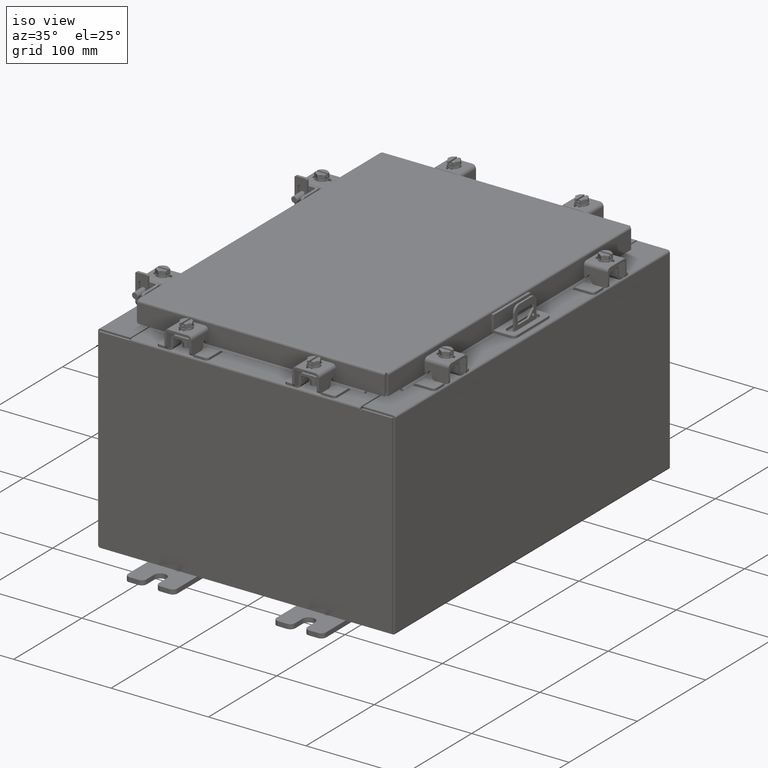
[diagram: clean part render]
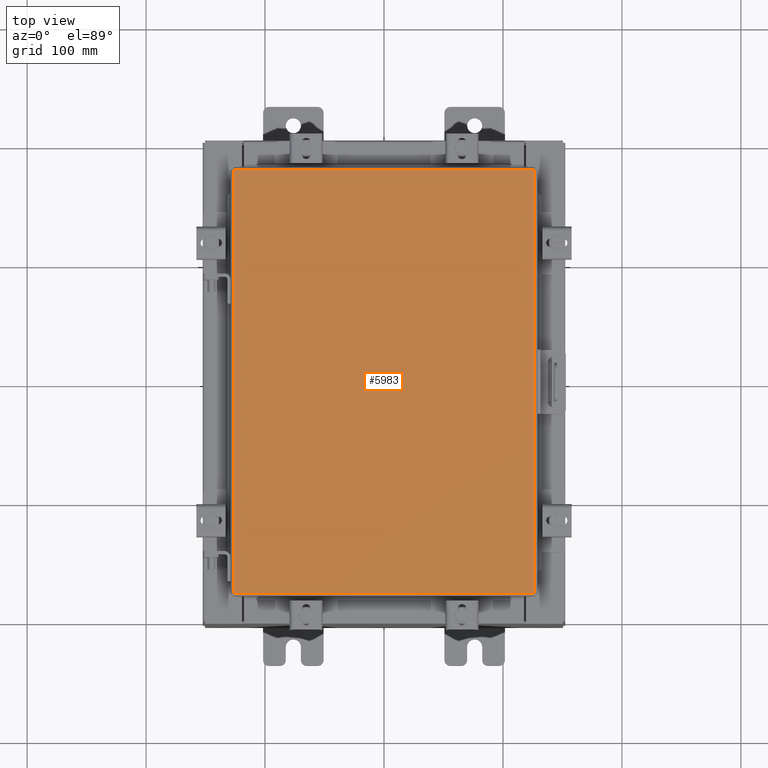
[diagram: tour spotlight — one face highlighted and labeled with its STEP entity id]
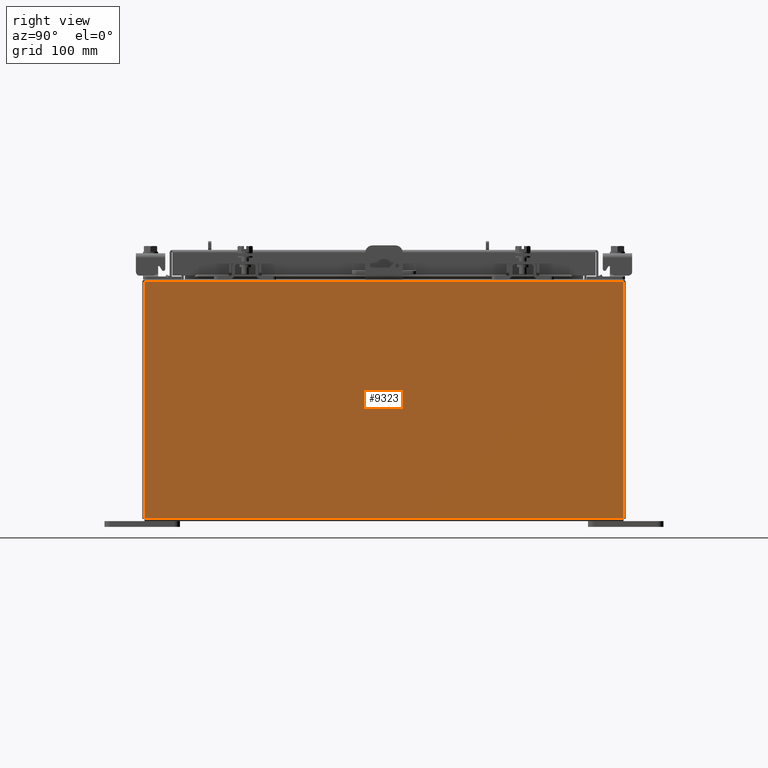
[diagram: tour spotlight — one face highlighted and labeled with its STEP entity id]
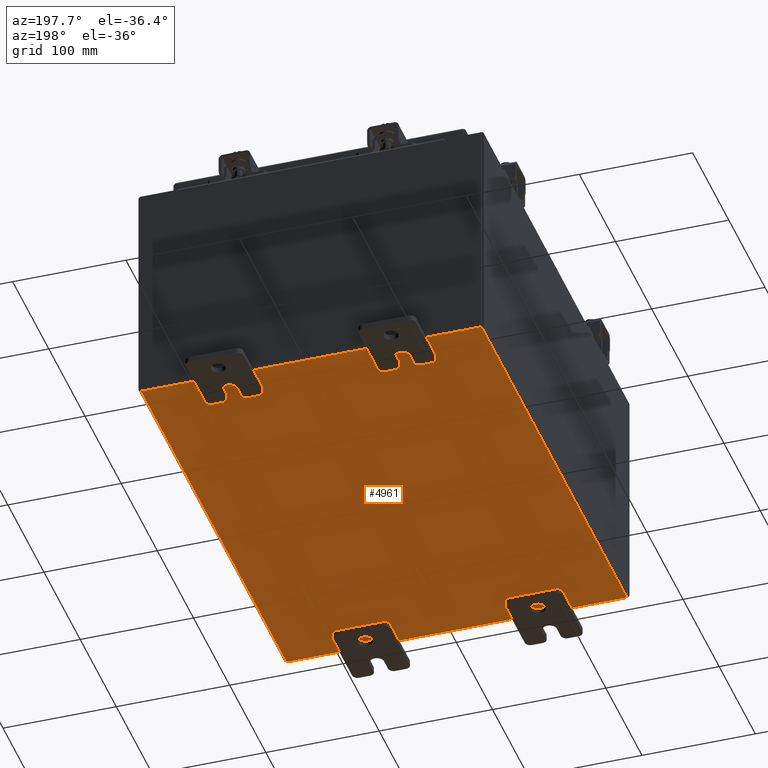
[diagram: tour spotlight — one face highlighted and labeled with its STEP entity id]
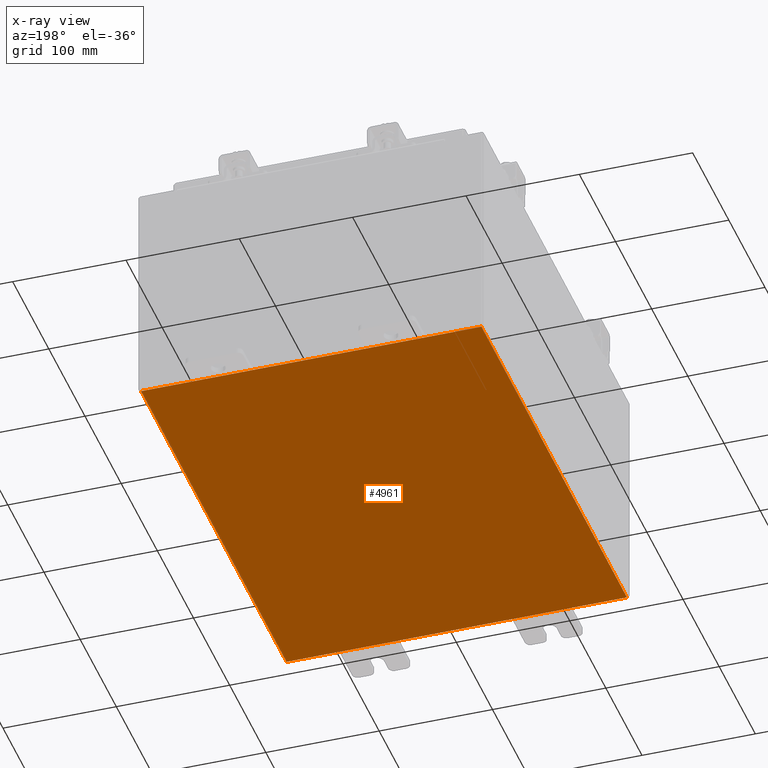
[diagram: x-ray of the same camera — body ghosted, this tour face saturated]
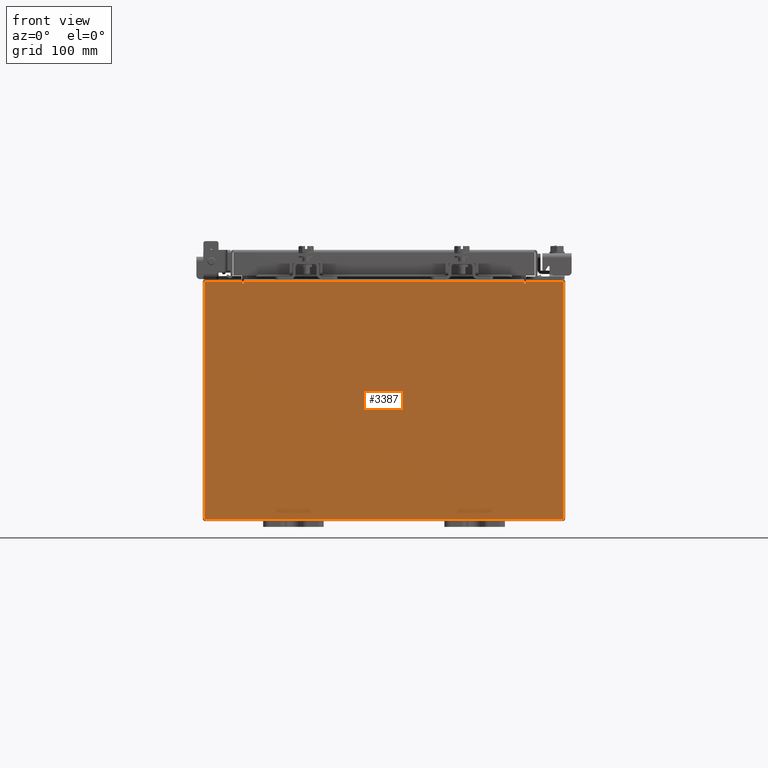
[diagram: tour spotlight — one face highlighted and labeled with its STEP entity id]
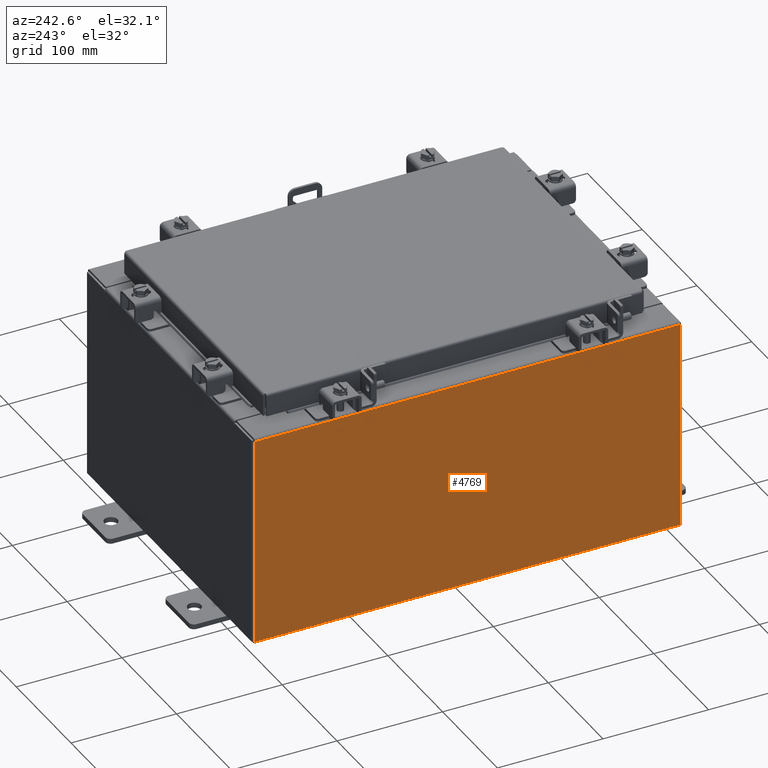
[diagram: tour spotlight — one face highlighted and labeled with its STEP entity id]
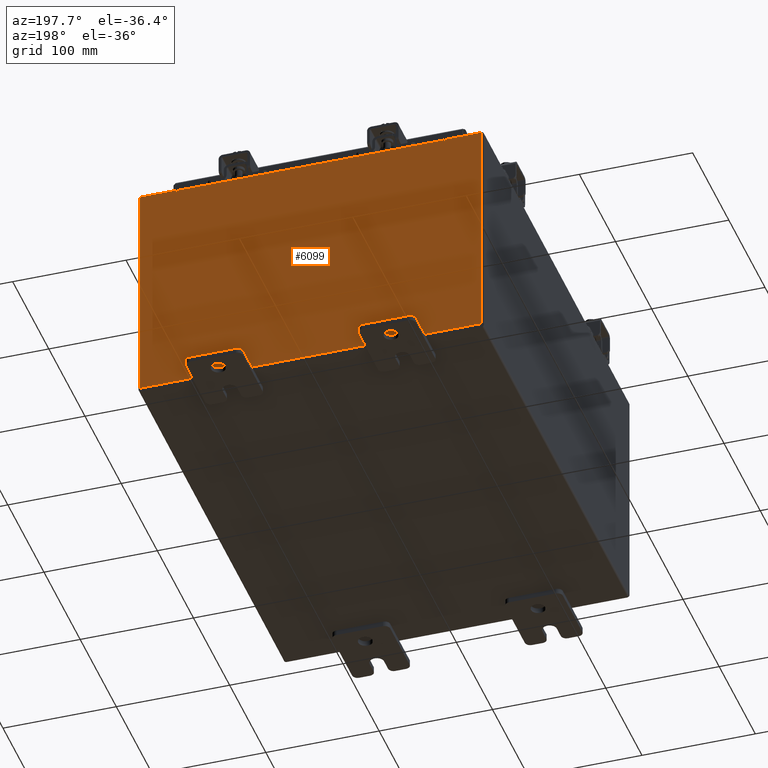
[diagram: tour spotlight — one face highlighted and labeled with its STEP entity id]
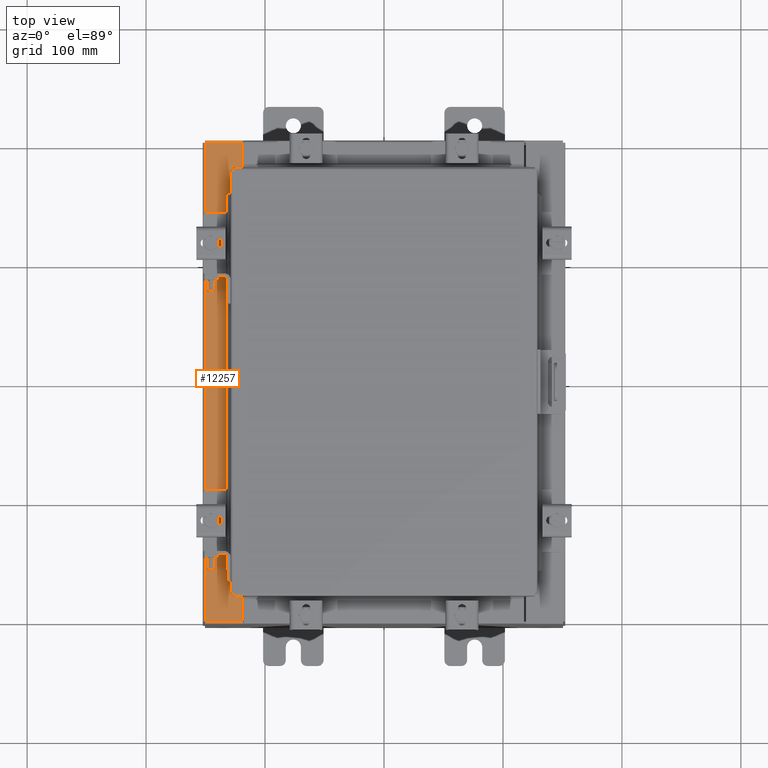
[diagram: tour spotlight — one face highlighted and labeled with its STEP entity id]
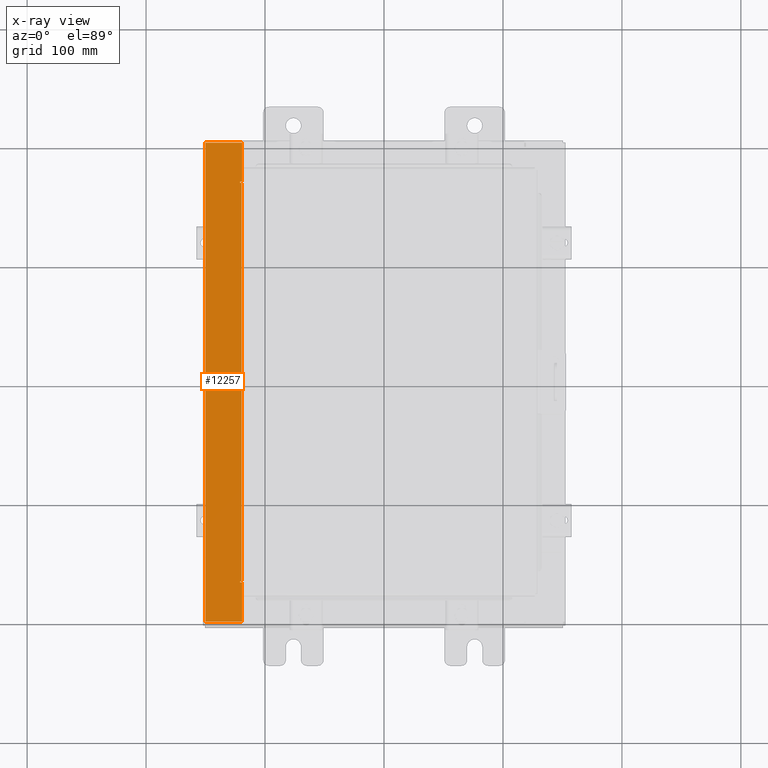
[diagram: x-ray of the same camera — body ghosted, this tour face saturated]
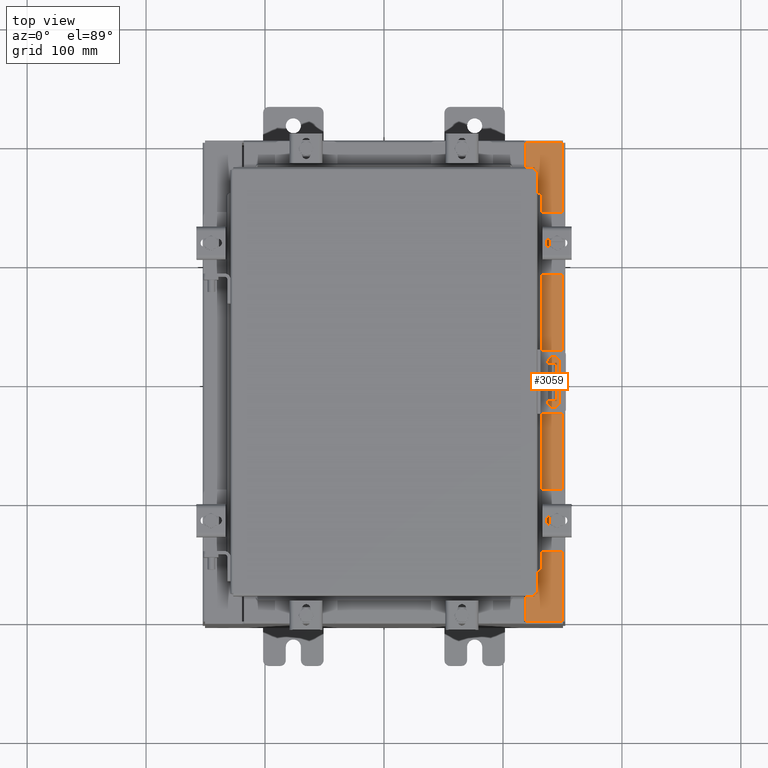
[diagram: tour spotlight — one face highlighted and labeled with its STEP entity id]
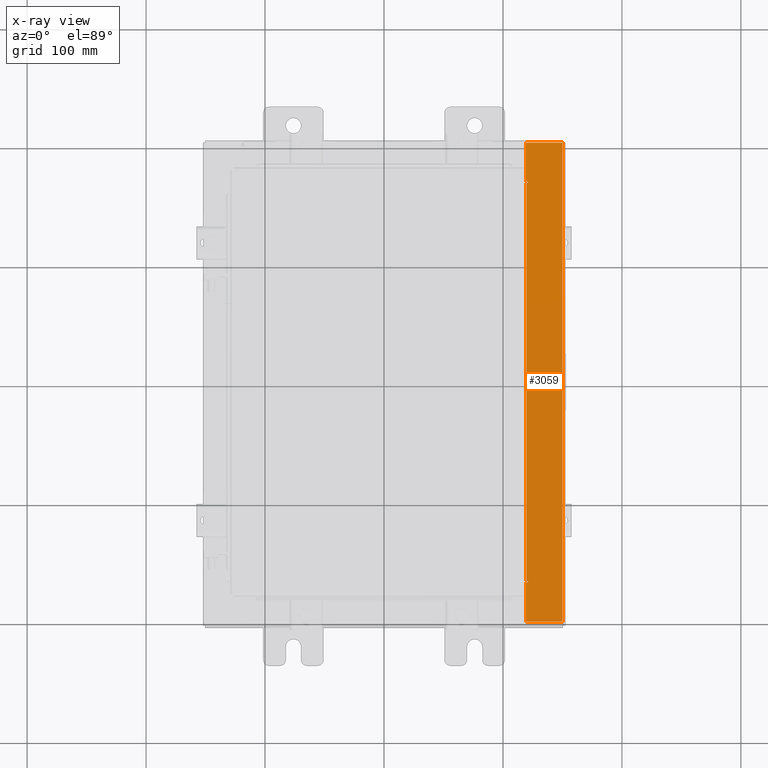
[diagram: x-ray of the same camera — body ghosted, this tour face saturated]
A machine part: a face-by-face anatomy tour. The part has 1534 B-rep faces; the first image is the clean iso view, then the 8 largest visible faces are spotlighted one at a time (largest first), each with its STEP entity span.

Face 1 — top view, entity #5983. In plain terms, the highlighted planar face has unit normal (0, 0, -1).
Definition (entity closure, byte-faithful):
#26 = CARTESIAN_POINT ( 'NONE',  ( 0.0000000000000000000, 0.0000000000000000000, 0.0000000000000000000 ) ) ;
#1419 = ORIENTED_EDGE ( 'NONE', *, *, #11060, .T. ) ;
#2033 = VECTOR ( 'NONE', #19659, 39.37007874015748100 ) ;
#2051 = CARTESIAN_POINT ( 'NONE',  ( 4.990299999999998600, -7.006300000000000400, 3.414809992080329000E-016 ) ) ;
#2077 = FACE_OUTER_BOUND ( 'NONE', #3958, .T. ) ;
#2314 = CARTESIAN_POINT ( 'NONE',  ( -4.990300000000000400, -7.006300000000000400, -2.048885995248197400E-016 ) ) ;
#2940 = CARTESIAN_POINT ( 'NONE',  ( -4.990300000000000400, 7.006300000000000400, -2.048885995248197400E-016 ) ) ;
#3460 = VECTOR ( 'NONE', #6015, 39.37007874015748100 ) ;
#3958 = EDGE_LOOP ( 'NONE', ( #16646, #12733, #1419, #19713 ) ) ;
#4003 = LINE ( 'NONE', #14611, #3460 ) ;
#4911 = EDGE_CURVE ( 'NONE', #10294, #15922, #20246, .T. ) ;
#5188 = DIRECTION ( 'NONE',  ( -1.000000000000000000, 0.0000000000000000000, -0.0000000000000000000 ) ) ;
#5751 = CARTESIAN_POINT ( 'NONE',  ( 4.990299999999998600, -7.006300000000000400, 3.414809992080329000E-016 ) ) ;
#5983 = ADVANCED_FACE ( 'NONE', ( #2077 ), #10263, .F. ) ;
#6015 = DIRECTION ( 'NONE',  ( 0.0000000000000000000, -1.000000000000000000, 0.0000000000000000000 ) ) ;
#6489 = EDGE_CURVE ( 'NONE', #15922, #19065, #7196, .T. ) ;
#7196 = LINE ( 'NONE', #2051, #15738 ) ;
#10263 = PLANE ( 'NONE',  #15085 ) ;
#10294 = VERTEX_POINT ( 'NONE', #2314 ) ;
#10562 = VERTEX_POINT ( 'NONE', #2940 ) ;
#10652 = DIRECTION ( 'NONE',  ( 0.0000000000000000000, 1.000000000000000000, 0.0000000000000000000 ) ) ;
#11060 = EDGE_CURVE ( 'NONE', #19065, #10562, #20157, .T. ) ;
#11218 = CARTESIAN_POINT ( 'NONE',  ( 4.990299999999998600, 7.006300000000000400, -2.048885995248197400E-016 ) ) ;
#12733 = ORIENTED_EDGE ( 'NONE', *, *, #6489, .T. ) ;
#13356 = EDGE_CURVE ( 'NONE', #10562, #10294, #4003, .T. ) ;
#14611 = CARTESIAN_POINT ( 'NONE',  ( -4.990300000000000400, 7.006300000000000400, -2.048885995248197400E-016 ) ) ;
#15085 = AXIS2_PLACEMENT_3D ( 'NONE', #26, #15442, #5188 ) ;
#15442 = DIRECTION ( 'NONE',  ( 0.0000000000000000000, 0.0000000000000000000, -1.000000000000000000 ) ) ;
#15738 = VECTOR ( 'NONE', #10652, 39.37007874015748100 ) ;
#15922 = VERTEX_POINT ( 'NONE', #5751 ) ;
#16646 = ORIENTED_EDGE ( 'NONE', *, *, #4911, .T. ) ;
#17287 = CARTESIAN_POINT ( 'NONE',  ( -4.990300000000000400, -7.006300000000000400, -2.048885995248197400E-016 ) ) ;
#18965 = DIRECTION ( 'NONE',  ( 1.000000000000000000, -0.0000000000000000000, -0.0000000000000000000 ) ) ;
#19065 = VERTEX_POINT ( 'NONE', #20188 ) ;
#19659 = DIRECTION ( 'NONE',  ( -1.000000000000000000, -0.0000000000000000000, -0.0000000000000000000 ) ) ;
#19713 = ORIENTED_EDGE ( 'NONE', *, *, #13356, .T. ) ;
#19732 = VECTOR ( 'NONE', #18965, 39.37007874015748100 ) ;
#20157 = LINE ( 'NONE', #11218, #2033 ) ;
#20188 = CARTESIAN_POINT ( 'NONE',  ( 4.990299999999998600, 7.006300000000000400, -2.048885995248197400E-016 ) ) ;
#20246 = LINE ( 'NONE', #17287, #19732 ) ;

Face 2 — right view, entity #9323. In plain terms, the highlighted planar face has unit normal (-1, 0, 0).
Definition (entity closure, byte-faithful):
#5 = VECTOR ( 'NONE', #3988, 39.37007874015748100 ) ;
#826 = CARTESIAN_POINT ( 'NONE',  ( 5.999999999999999100, -7.925300000000000900, -1.985005237986820200E-014 ) ) ;
#1051 = CARTESIAN_POINT ( 'NONE',  ( 6.000000000000026600, -7.925300000000000900, 7.837599999999998300 ) ) ;
#1063 = CARTESIAN_POINT ( 'NONE',  ( 5.999999999999999100, -7.925300000000000000, 0.01299999999999984800 ) ) ;
#1204 = DIRECTION ( 'NONE',  ( 3.446996320220386900E-015, 0.0000000000000000000, 1.000000000000000000 ) ) ;
#2243 = CARTESIAN_POINT ( 'NONE',  ( 5.999999999999999100, 7.925299999999998200, -2.094279157733390500E-014 ) ) ;
#2876 = VERTEX_POINT ( 'NONE', #1063 ) ;
#3384 = LINE ( 'NONE', #20831, #7423 ) ;
#3456 = AXIS2_PLACEMENT_3D ( 'NONE', #21619, #11464, #1204 ) ;
#3629 = EDGE_LOOP ( 'NONE', ( #5453, #6234, #5821, #12351 ) ) ;
#3988 = DIRECTION ( 'NONE',  ( 3.446996320220387700E-015, 0.0000000000000000000, 1.000000000000000000 ) ) ;
#4763 = LINE ( 'NONE', #826, #11180 ) ;
#5041 = EDGE_CURVE ( 'NONE', #13026, #14656, #13658, .T. ) ;
#5453 = ORIENTED_EDGE ( 'NONE', *, *, #14939, .T. ) ;
#5821 = ORIENTED_EDGE ( 'NONE', *, *, #15349, .F. ) ;
#6234 = ORIENTED_EDGE ( 'NONE', *, *, #14658, .T. ) ;
#6261 = PLANE ( 'NONE',  #3456 ) ;
#7423 = VECTOR ( 'NONE', #14074, 39.37007874015748100 ) ;
#9323 = ADVANCED_FACE ( 'NONE', ( #20742 ), #6261, .F. ) ;
#9364 = DIRECTION ( 'NONE',  ( -3.446996320220387700E-015, -1.378798528088154900E-016, -1.000000000000000000 ) ) ;
#10881 = VECTOR ( 'NONE', #16458, 39.37007874015748100 ) ;
#11180 = VECTOR ( 'NONE', #9364, 39.37007874015748100 ) ;
#11464 = DIRECTION ( 'NONE',  ( -1.000000000000000000, 0.0000000000000000000, 3.446996320220386900E-015 ) ) ;
#12351 = ORIENTED_EDGE ( 'NONE', *, *, #5041, .T. ) ;
#12760 = VERTEX_POINT ( 'NONE', #1051 ) ;
#12804 = CARTESIAN_POINT ( 'NONE',  ( 6.000000000000029300, 7.925300000000000900, 7.837599999999992100 ) ) ;
#13026 = VERTEX_POINT ( 'NONE', #20395 ) ;
#13658 = LINE ( 'NONE', #2243, #5 ) ;
#14074 = DIRECTION ( 'NONE',  ( -0.0000000000000000000, -1.000000000000000000, -0.0000000000000000000 ) ) ;
#14656 = VERTEX_POINT ( 'NONE', #12804 ) ;
#14658 = EDGE_CURVE ( 'NONE', #12760, #2876, #4763, .T. ) ;
#14761 = CARTESIAN_POINT ( 'NONE',  ( 6.000000000000029300, 7.925300000000000900, 7.837599999999992100 ) ) ;
#14939 = EDGE_CURVE ( 'NONE', #14656, #12760, #15447, .T. ) ;
#15349 = EDGE_CURVE ( 'NONE', #13026, #2876, #3384, .T. ) ;
#15447 = LINE ( 'NONE', #14761, #10881 ) ;
#16458 = DIRECTION ( 'NONE',  ( -0.0000000000000000000, -1.000000000000000000, -0.0000000000000000000 ) ) ;
#20395 = CARTESIAN_POINT ( 'NONE',  ( 5.999999999999999100, 7.925300000000000000, 0.01299999999999984700 ) ) ;
#20742 = FACE_OUTER_BOUND ( 'NONE', #3629, .T. ) ;
#20831 = CARTESIAN_POINT ( 'NONE',  ( 5.999999999999999100, -7.925300000000000000, 0.01299999999999984700 ) ) ;
#21619 = CARTESIAN_POINT ( 'NONE',  ( 5.999999999999999100, 0.0000000000000000000, -2.094279157733390500E-014 ) ) ;

Face 3 — auxiliary view, entity #4961. An x-ray twin of the same camera follows (body ghosted, this face saturated) — the face is partly hidden behind the body. In plain terms, the highlighted planar face has unit normal (0, 0, -1).
Definition (entity closure, byte-faithful):
#91 = CARTESIAN_POINT ( 'NONE',  ( 5.912299999999994800, -7.925300000000000900, -0.07470000000000000300 ) ) ;
#184 = EDGE_CURVE ( 'NONE', #8241, #13045, #7962, .T. ) ;
#427 = EDGE_CURVE ( 'NONE', #8241, #2898, #13814, .T. ) ;
#536 = ORIENTED_EDGE ( 'NONE', *, *, #14011, .T. ) ;
#858 = CARTESIAN_POINT ( 'NONE',  ( 5.912299999999999200, 7.925300000000000000, -0.07469999999999994700 ) ) ;
#954 = EDGE_CURVE ( 'NONE', #19912, #2898, #14891, .T. ) ;
#962 = CARTESIAN_POINT ( 'NONE',  ( 5.912299999999999200, 7.925300000000000000, -0.07469999999999994700 ) ) ;
#1711 = VECTOR ( 'NONE', #18812, 39.37007874015748100 ) ;
#1940 = CARTESIAN_POINT ( 'NONE',  ( -5.912300000000001000, -7.925300000000000900, -0.07469999999999874000 ) ) ;
#2197 = DIRECTION ( 'NONE',  ( -0.0000000000000000000, 1.000000000000000000, -8.208677865577646300E-017 ) ) ;
#2898 = VERTEX_POINT ( 'NONE', #21625 ) ;
#3377 = VECTOR ( 'NONE', #7784, 39.37007874015748100 ) ;
#3783 = DIRECTION ( 'NONE',  ( -1.000000000000000000, 0.0000000000000000000, -0.0000000000000000000 ) ) ;
#3890 = EDGE_LOOP ( 'NONE', ( #11211, #17598, #21306, #536 ) ) ;
#4890 = AXIS2_PLACEMENT_3D ( 'NONE', #5437, #14045, #3783 ) ;
#4961 = ADVANCED_FACE ( 'NONE', ( #10173 ), #12294, .T. ) ;
#5437 = CARTESIAN_POINT ( 'NONE',  ( 0.0000000000000000000, 0.0000000000000000000, -0.07470000000000000300 ) ) ;
#7784 = DIRECTION ( 'NONE',  ( 1.000000000000000000, 0.0000000000000000000, 0.0000000000000000000 ) ) ;
#7962 = LINE ( 'NONE', #8142, #3377 ) ;
#8142 = CARTESIAN_POINT ( 'NONE',  ( -6.000000000000001800, -7.925300000000000900, -0.07470000000000000300 ) ) ;
#8241 = VERTEX_POINT ( 'NONE', #14642 ) ;
#10173 = FACE_OUTER_BOUND ( 'NONE', #3890, .T. ) ;
#11211 = ORIENTED_EDGE ( 'NONE', *, *, #184, .F. ) ;
#12294 = PLANE ( 'NONE',  #4890 ) ;
#13045 = VERTEX_POINT ( 'NONE', #91 ) ;
#13280 = VECTOR ( 'NONE', #2197, 39.37007874015748100 ) ;
#13814 = LINE ( 'NONE', #1940, #13280 ) ;
#14011 = EDGE_CURVE ( 'NONE', #19912, #13045, #18879, .T. ) ;
#14045 = DIRECTION ( 'NONE',  ( 0.0000000000000000000, 0.0000000000000000000, -1.000000000000000000 ) ) ;
#14642 = CARTESIAN_POINT ( 'NONE',  ( -5.912300000000001000, -7.925300000000000900, -0.07469999999999874000 ) ) ;
#14891 = LINE ( 'NONE', #18604, #1711 ) ;
#17598 = ORIENTED_EDGE ( 'NONE', *, *, #427, .T. ) ;
#18371 = VECTOR ( 'NONE', #21269, 39.37007874015748100 ) ;
#18604 = CARTESIAN_POINT ( 'NONE',  ( -6.000000000000001800, 7.925299999999998200, -0.07470000000000000300 ) ) ;
#18812 = DIRECTION ( 'NONE',  ( -1.000000000000000000, -0.0000000000000000000, -0.0000000000000000000 ) ) ;
#18879 = LINE ( 'NONE', #858, #18371 ) ;
#19912 = VERTEX_POINT ( 'NONE', #962 ) ;
#21269 = DIRECTION ( 'NONE',  ( -0.0000000000000000000, -1.000000000000000000, -0.0000000000000000000 ) ) ;
#21306 = ORIENTED_EDGE ( 'NONE', *, *, #954, .F. ) ;
#21625 = CARTESIAN_POINT ( 'NONE',  ( -5.912300000000001000, 7.925299999999998200, -0.07470000000000000300 ) ) ;

Face 4 — front view, entity #3387. In plain terms, the highlighted planar face has unit normal (-0, 1, -0).
Definition (entity closure, byte-faithful):
#117 = CARTESIAN_POINT ( 'NONE',  ( -4.637199999999998200, -0.0000000000000000000, 0.0000000000000000000 ) ) ;
#179 = DIRECTION ( 'NONE',  ( -0.0000000000000000000, 1.000000000000000000, -0.0000000000000000000 ) ) ;
#363 = DIRECTION ( 'NONE',  ( 1.000000000000000000, 0.0000000000000000000, 0.0000000000000000000 ) ) ;
#485 = VERTEX_POINT ( 'NONE', #1448 ) ;
#839 = EDGE_CURVE ( 'NONE', #20750, #10664, #11912, .T. ) ;
#1047 = CIRCLE ( 'NONE', #20397, 0.01867500000000003900 ) ;
#1448 = CARTESIAN_POINT ( 'NONE',  ( 4.674550000000002600, 0.0000000000000000000, 3.874949999999999200 ) ) ;
#1570 = LINE ( 'NONE', #5697, #5621 ) ;
#1984 = ORIENTED_EDGE ( 'NONE', *, *, #10423, .F. ) ;
#2059 = LINE ( 'NONE', #19584, #14141 ) ;
#2403 = EDGE_CURVE ( 'NONE', #18634, #19429, #19538, .T. ) ;
#3267 = AXIS2_PLACEMENT_3D ( 'NONE', #20792, #19459, #19393 ) ;
#3387 = ADVANCED_FACE ( 'NONE', ( #13700 ), #19763, .F. ) ;
#4182 = ORIENTED_EDGE ( 'NONE', *, *, #20508, .T. ) ;
#4941 = CARTESIAN_POINT ( 'NONE',  ( 5.925300000000002700, 0.0000000000000000000, 3.925299999999999100 ) ) ;
#5444 = EDGE_CURVE ( 'NONE', #10664, #16994, #1047, .T. ) ;
#5460 = CARTESIAN_POINT ( 'NONE',  ( -5.925299999999998200, 0.0000000000000000000, 3.925299999999999100 ) ) ;
#5590 = VERTEX_POINT ( 'NONE', #10760 ) ;
#5621 = VECTOR ( 'NONE', #12548, 39.37007874015748100 ) ;
#5686 = CARTESIAN_POINT ( 'NONE',  ( -5.925299999999998200, 0.0000000000000000000, -3.925300000000000500 ) ) ;
#5697 = CARTESIAN_POINT ( 'NONE',  ( -4.637199999999998200, -1.707404996040164500E-016, 3.912299999999999200 ) ) ;
#5708 = AXIS2_PLACEMENT_3D ( 'NONE', #20022, #9875, #21751 ) ;
#5874 = CARTESIAN_POINT ( 'NONE',  ( -5.925299999999998200, 0.0000000000000000000, -3.925300000000000500 ) ) ;
#6040 = CARTESIAN_POINT ( 'NONE',  ( 4.674549999999960900, -0.0000000000000000000, -5.072556122654668400E-014 ) ) ;
#6122 = DIRECTION ( 'NONE',  ( -1.000000000000000000, -0.0000000000000000000, -0.0000000000000000000 ) ) ;
#6437 = DIRECTION ( 'NONE',  ( 0.0000000000000000000, 0.0000000000000000000, -1.000000000000000000 ) ) ;
#6458 = CARTESIAN_POINT ( 'NONE',  ( 5.925300000000002700, 0.0000000000000000000, -3.925300000000000500 ) ) ;
#6459 = EDGE_CURVE ( 'NONE', #13009, #13540, #21284, .T. ) ;
#6513 = LINE ( 'NONE', #19726, #14557 ) ;
#6575 = ORIENTED_EDGE ( 'NONE', *, *, #6459, .T. ) ;
#6593 = EDGE_CURVE ( 'NONE', #16994, #13540, #2059, .T. ) ;
#7020 = EDGE_CURVE ( 'NONE', #15149, #18634, #16255, .T. ) ;
#7036 = ORIENTED_EDGE ( 'NONE', *, *, #5444, .F. ) ;
#7168 = CARTESIAN_POINT ( 'NONE',  ( -4.674549999999998200, 0.0000000000000000000, 3.874949999999999200 ) ) ;
#7174 = ORIENTED_EDGE ( 'NONE', *, *, #6593, .F. ) ;
#7390 = VECTOR ( 'NONE', #13333, 39.37007874015748100 ) ;
#7823 = DIRECTION ( 'NONE',  ( 0.0000000000000000000, 0.0000000000000000000, 1.000000000000000000 ) ) ;
#8256 = VECTOR ( 'NONE', #16246, 39.37007874015748100 ) ;
#8263 = CARTESIAN_POINT ( 'NONE',  ( 4.637200000000002700, 0.0000000000000000000, 3.874949999999999200 ) ) ;
#8481 = CARTESIAN_POINT ( 'NONE',  ( -5.925299999999998200, 0.0000000000000000000, 3.925299999999999100 ) ) ;
#9875 = DIRECTION ( 'NONE',  ( -0.0000000000000000000, 1.000000000000000000, -0.0000000000000000000 ) ) ;
#10391 = CARTESIAN_POINT ( 'NONE',  ( -4.655874999999998200, 0.0000000000000000000, 3.874949999999999200 ) ) ;
#10423 = EDGE_CURVE ( 'NONE', #11108, #485, #21795, .T. ) ;
#10664 = VERTEX_POINT ( 'NONE', #21898 ) ;
#10760 = CARTESIAN_POINT ( 'NONE',  ( 4.637200000000002700, 0.0000000000000000000, 3.912299999999999200 ) ) ;
#11080 = ORIENTED_EDGE ( 'NONE', *, *, #7020, .T. ) ;
#11108 = VERTEX_POINT ( 'NONE', #18074 ) ;
#11293 = DIRECTION ( 'NONE',  ( -0.0000000000000000000, -0.0000000000000000000, 1.000000000000000000 ) ) ;
#11705 = VECTOR ( 'NONE', #6437, 39.37007874015748100 ) ;
#11912 = LINE ( 'NONE', #117, #7390 ) ;
#12121 = DIRECTION ( 'NONE',  ( 0.0000000000000000000, 0.0000000000000000000, -1.000000000000000000 ) ) ;
#12548 = DIRECTION ( 'NONE',  ( 1.000000000000000000, 0.0000000000000000000, 0.0000000000000000000 ) ) ;
#12905 = VECTOR ( 'NONE', #16194, 39.37007874015748100 ) ;
#12949 = LINE ( 'NONE', #18013, #21415 ) ;
#13009 = VERTEX_POINT ( 'NONE', #8481 ) ;
#13333 = DIRECTION ( 'NONE',  ( 0.0000000000000000000, 0.0000000000000000000, -1.000000000000000000 ) ) ;
#13540 = VERTEX_POINT ( 'NONE', #21505 ) ;
#13572 = ORIENTED_EDGE ( 'NONE', *, *, #2403, .T. ) ;
#13700 = FACE_OUTER_BOUND ( 'NONE', #21581, .T. ) ;
#13705 = ORIENTED_EDGE ( 'NONE', *, *, #15045, .F. ) ;
#14127 = ORIENTED_EDGE ( 'NONE', *, *, #19944, .T. ) ;
#14141 = VECTOR ( 'NONE', #21372, 39.37007874015748100 ) ;
#14557 = VECTOR ( 'NONE', #11293, 39.37007874015748100 ) ;
#14570 = VECTOR ( 'NONE', #6122, 39.37007874015748100 ) ;
#15045 = EDGE_CURVE ( 'NONE', #485, #17353, #19375, .T. ) ;
#15149 = VERTEX_POINT ( 'NONE', #4941 ) ;
#15567 = ORIENTED_EDGE ( 'NONE', *, *, #19533, .F. ) ;
#16194 = DIRECTION ( 'NONE',  ( 1.000000000000000000, 0.0000000000000000000, 0.0000000000000000000 ) ) ;
#16246 = DIRECTION ( 'NONE',  ( -1.085143195100001200E-014, 0.0000000000000000000, -1.000000000000000000 ) ) ;
#16255 = LINE ( 'NONE', #18342, #11705 ) ;
#16762 = CARTESIAN_POINT ( 'NONE',  ( -4.637199999999998200, -1.707404996040164500E-016, 3.912299999999999200 ) ) ;
#16994 = VERTEX_POINT ( 'NONE', #7168 ) ;
#17353 = VERTEX_POINT ( 'NONE', #8263 ) ;
#17886 = CARTESIAN_POINT ( 'NONE',  ( -5.925299999999998200, 0.0000000000000000000, 3.925299999999999100 ) ) ;
#17954 = LINE ( 'NONE', #17886, #12905 ) ;
#18013 = CARTESIAN_POINT ( 'NONE',  ( 4.637200000000002700, 0.0000000000000000000, 0.0000000000000000000 ) ) ;
#18074 = CARTESIAN_POINT ( 'NONE',  ( 4.674550000000001800, 0.0000000000000000000, 3.925299999999999100 ) ) ;
#18342 = CARTESIAN_POINT ( 'NONE',  ( 5.925300000000002700, 0.0000000000000000000, 3.925299999999999100 ) ) ;
#18634 = VERTEX_POINT ( 'NONE', #6458 ) ;
#19003 = ORIENTED_EDGE ( 'NONE', *, *, #839, .F. ) ;
#19375 = CIRCLE ( 'NONE', #5708, 0.01867500000000003900 ) ;
#19393 = DIRECTION ( 'NONE',  ( 0.0000000000000000000, -0.0000000000000000000, -1.000000000000000000 ) ) ;
#19429 = VERTEX_POINT ( 'NONE', #5874 ) ;
#19459 = DIRECTION ( 'NONE',  ( 0.0000000000000000000, -1.000000000000000000, 0.0000000000000000000 ) ) ;
#19533 = EDGE_CURVE ( 'NONE', #17353, #5590, #12949, .T. ) ;
#19538 = LINE ( 'NONE', #5686, #14570 ) ;
#19584 = CARTESIAN_POINT ( 'NONE',  ( -4.674549999999998200, -0.0000000000000000000, 0.0000000000000000000 ) ) ;
#19726 = CARTESIAN_POINT ( 'NONE',  ( -5.925299999999998200, 0.0000000000000000000, 3.925299999999999100 ) ) ;
#19763 = PLANE ( 'NONE',  #3267 ) ;
#19944 = EDGE_CURVE ( 'NONE', #19429, #13009, #6513, .T. ) ;
#20022 = CARTESIAN_POINT ( 'NONE',  ( 4.655875000000002700, 0.0000000000000000000, 3.874949999999999200 ) ) ;
#20397 = AXIS2_PLACEMENT_3D ( 'NONE', #10391, #179, #12121 ) ;
#20508 = EDGE_CURVE ( 'NONE', #11108, #15149, #17954, .T. ) ;
#20717 = VECTOR ( 'NONE', #363, 39.37007874015748100 ) ;
#20750 = VERTEX_POINT ( 'NONE', #16762 ) ;
#20792 = CARTESIAN_POINT ( 'NONE',  ( 0.0000000000000000000, 0.0000000000000000000, 0.0000000000000000000 ) ) ;
#21284 = LINE ( 'NONE', #5460, #20717 ) ;
#21365 = ORIENTED_EDGE ( 'NONE', *, *, #21809, .T. ) ;
#21372 = DIRECTION ( 'NONE',  ( 0.0000000000000000000, 0.0000000000000000000, 1.000000000000000000 ) ) ;
#21415 = VECTOR ( 'NONE', #7823, 39.37007874015748100 ) ;
#21505 = CARTESIAN_POINT ( 'NONE',  ( -4.674549999999998200, 0.0000000000000000000, 3.925299999999999100 ) ) ;
#21581 = EDGE_LOOP ( 'NONE', ( #7174, #7036, #19003, #21365, #15567, #13705, #1984, #4182, #11080, #13572, #14127, #6575 ) ) ;
#21751 = DIRECTION ( 'NONE',  ( 0.0000000000000000000, 0.0000000000000000000, -1.000000000000000000 ) ) ;
#21795 = LINE ( 'NONE', #6040, #8256 ) ;
#21809 = EDGE_CURVE ( 'NONE', #20750, #5590, #1570, .T. ) ;
#21898 = CARTESIAN_POINT ( 'NONE',  ( -4.637199999999998200, -0.0000000000000000000, 3.874949999999999200 ) ) ;

Face 5 — auxiliary view, entity #4769. In plain terms, the highlighted planar face has unit normal (1, 0, 0).
Definition (entity closure, byte-faithful):
#204 = VERTEX_POINT ( 'NONE', #7940 ) ;
#1186 = ORIENTED_EDGE ( 'NONE', *, *, #20564, .F. ) ;
#1888 = VECTOR ( 'NONE', #20732, 39.37007874015748100 ) ;
#2009 = VERTEX_POINT ( 'NONE', #20511 ) ;
#2493 = ORIENTED_EDGE ( 'NONE', *, *, #20405, .T. ) ;
#3340 = CARTESIAN_POINT ( 'NONE',  ( -6.000000000000001800, 0.0000000000000000000, -2.094279157733391500E-014 ) ) ;
#3978 = CARTESIAN_POINT ( 'NONE',  ( -6.000000000000001800, -7.925300000000000900, 0.01300000000000094000 ) ) ;
#4645 = LINE ( 'NONE', #7133, #13206 ) ;
#4769 = ADVANCED_FACE ( 'NONE', ( #17376 ), #13585, .F. ) ;
#4934 = VECTOR ( 'NONE', #20425, 39.37007874015748100 ) ;
#5047 = DIRECTION ( 'NONE',  ( 1.000000000000000000, 0.0000000000000000000, 3.446996320220386900E-015 ) ) ;
#5592 = CARTESIAN_POINT ( 'NONE',  ( -6.000000000000029300, -7.925300000000000900, 7.837599999999999200 ) ) ;
#6573 = CARTESIAN_POINT ( 'NONE',  ( -6.000000000000029300, 7.925299999999998200, 7.837599999999999200 ) ) ;
#7133 = CARTESIAN_POINT ( 'NONE',  ( -6.000000000000001800, 7.925299999999998200, -2.094279157733391500E-014 ) ) ;
#7940 = CARTESIAN_POINT ( 'NONE',  ( -6.000000000000001800, 7.925299999999998200, 0.01299999999999974100 ) ) ;
#8642 = CARTESIAN_POINT ( 'NONE',  ( -6.000000000000001800, -7.925300000000000900, -1.985005237986820800E-014 ) ) ;
#10526 = DIRECTION ( 'NONE',  ( 3.446996320220387700E-015, 0.0000000000000000000, -1.000000000000000000 ) ) ;
#11817 = VECTOR ( 'NONE', #18044, 39.37007874015748100 ) ;
#12086 = LINE ( 'NONE', #5592, #1888 ) ;
#13043 = AXIS2_PLACEMENT_3D ( 'NONE', #3340, #5047, #16996 ) ;
#13206 = VECTOR ( 'NONE', #10526, 39.37007874015748100 ) ;
#13585 = PLANE ( 'NONE',  #13043 ) ;
#14049 = LINE ( 'NONE', #8642, #4934 ) ;
#14587 = CARTESIAN_POINT ( 'NONE',  ( -6.000000000000001800, 7.925299999999998200, 0.01299999999999984700 ) ) ;
#15705 = VERTEX_POINT ( 'NONE', #6573 ) ;
#16007 = ORIENTED_EDGE ( 'NONE', *, *, #19735, .T. ) ;
#16366 = LINE ( 'NONE', #14587, #11817 ) ;
#16887 = EDGE_CURVE ( 'NONE', #19364, #2009, #14049, .T. ) ;
#16996 = DIRECTION ( 'NONE',  ( 3.446996320220386900E-015, 0.0000000000000000000, -1.000000000000000000 ) ) ;
#17376 = FACE_OUTER_BOUND ( 'NONE', #20387, .T. ) ;
#18044 = DIRECTION ( 'NONE',  ( 2.376356726322578400E-031, 1.000000000000000000, -6.893992640440775600E-017 ) ) ;
#19364 = VERTEX_POINT ( 'NONE', #3978 ) ;
#19485 = ORIENTED_EDGE ( 'NONE', *, *, #16887, .T. ) ;
#19735 = EDGE_CURVE ( 'NONE', #15705, #204, #4645, .T. ) ;
#20387 = EDGE_LOOP ( 'NONE', ( #2493, #16007, #1186, #19485 ) ) ;
#20405 = EDGE_CURVE ( 'NONE', #2009, #15705, #12086, .T. ) ;
#20425 = DIRECTION ( 'NONE',  ( -3.446996320220387700E-015, 1.378798528088155100E-016, 1.000000000000000000 ) ) ;
#20511 = CARTESIAN_POINT ( 'NONE',  ( -6.000000000000029300, -7.925300000000000000, 7.837599999999999200 ) ) ;
#20564 = EDGE_CURVE ( 'NONE', #19364, #204, #16366, .T. ) ;
#20732 = DIRECTION ( 'NONE',  ( 0.0000000000000000000, 1.000000000000000000, 0.0000000000000000000 ) ) ;

Face 6 — auxiliary view, entity #6099. In plain terms, the highlighted planar face has unit normal (0, -1, 0).
Definition (entity closure, byte-faithful):
#52 = VERTEX_POINT ( 'NONE', #10729 ) ;
#162 = VECTOR ( 'NONE', #10961, 39.37007874015748100 ) ;
#527 = LINE ( 'NONE', #12967, #4572 ) ;
#723 = CARTESIAN_POINT ( 'NONE',  ( -5.925299999999998200, 0.0000000000000000000, 3.925299999999999100 ) ) ;
#733 = AXIS2_PLACEMENT_3D ( 'NONE', #5559, #17488, #7293 ) ;
#882 = AXIS2_PLACEMENT_3D ( 'NONE', #2012, #7217, #19091 ) ;
#1032 = EDGE_CURVE ( 'NONE', #14797, #4722, #8698, .T. ) ;
#1187 = CARTESIAN_POINT ( 'NONE',  ( -4.637199999999998200, -0.0000000000000000000, 0.0000000000000000000 ) ) ;
#1380 = CARTESIAN_POINT ( 'NONE',  ( 4.637200000000002700, 0.0000000000000000000, 3.912299999999999200 ) ) ;
#1853 = EDGE_CURVE ( 'NONE', #17250, #2864, #18009, .T. ) ;
#1874 = VERTEX_POINT ( 'NONE', #19578 ) ;
#2012 = CARTESIAN_POINT ( 'NONE',  ( 0.0000000000000000000, 0.0000000000000000000, 0.0000000000000000000 ) ) ;
#2336 = EDGE_CURVE ( 'NONE', #18422, #10437, #20059, .T. ) ;
#2494 = CARTESIAN_POINT ( 'NONE',  ( -5.925299999999998200, 0.0000000000000000000, 3.925299999999999100 ) ) ;
#2610 = CARTESIAN_POINT ( 'NONE',  ( 4.637200000000002700, 0.0000000000000000000, 0.0000000000000000000 ) ) ;
#2628 = DIRECTION ( 'NONE',  ( 0.0000000000000000000, 0.0000000000000000000, 1.000000000000000000 ) ) ;
#2636 = ORIENTED_EDGE ( 'NONE', *, *, #2336, .T. ) ;
#2786 = ORIENTED_EDGE ( 'NONE', *, *, #3762, .F. ) ;
#2864 = VERTEX_POINT ( 'NONE', #7512 ) ;
#3650 = VECTOR ( 'NONE', #5369, 39.37007874015748100 ) ;
#3762 = EDGE_CURVE ( 'NONE', #18668, #15318, #7275, .T. ) ;
#4452 = DIRECTION ( 'NONE',  ( 0.0000000000000000000, 0.0000000000000000000, -1.000000000000000000 ) ) ;
#4572 = VECTOR ( 'NONE', #4452, 39.37007874015748100 ) ;
#4687 = AXIS2_PLACEMENT_3D ( 'NONE', #18315, #8129, #19974 ) ;
#4716 = LINE ( 'NONE', #723, #162 ) ;
#4722 = VERTEX_POINT ( 'NONE', #1380 ) ;
#4784 = LINE ( 'NONE', #8666, #17857 ) ;
#5030 = DIRECTION ( 'NONE',  ( 1.000000000000000000, 0.0000000000000000000, 0.0000000000000000000 ) ) ;
#5369 = DIRECTION ( 'NONE',  ( -0.0000000000000000000, -0.0000000000000000000, 1.000000000000000000 ) ) ;
#5559 = CARTESIAN_POINT ( 'NONE',  ( -4.655874999999998200, 0.0000000000000000000, 3.874949999999999200 ) ) ;
#6099 = ADVANCED_FACE ( 'NONE', ( #18130 ), #8847, .F. ) ;
#6237 = ORIENTED_EDGE ( 'NONE', *, *, #14101, .F. ) ;
#6374 = EDGE_CURVE ( 'NONE', #1874, #10437, #4784, .T. ) ;
#6456 = VERTEX_POINT ( 'NONE', #12250 ) ;
#6533 = CARTESIAN_POINT ( 'NONE',  ( 4.674550000000001800, 0.0000000000000000000, 3.925299999999999100 ) ) ;
#6727 = VECTOR ( 'NONE', #20655, 39.37007874015748100 ) ;
#6785 = EDGE_CURVE ( 'NONE', #52, #4722, #14951, .T. ) ;
#6946 = DIRECTION ( 'NONE',  ( 0.0000000000000000000, 0.0000000000000000000, 1.000000000000000000 ) ) ;
#7217 = DIRECTION ( 'NONE',  ( 0.0000000000000000000, -1.000000000000000000, 0.0000000000000000000 ) ) ;
#7275 = LINE ( 'NONE', #18975, #6727 ) ;
#7293 = DIRECTION ( 'NONE',  ( 0.0000000000000000000, 0.0000000000000000000, -1.000000000000000000 ) ) ;
#7512 = CARTESIAN_POINT ( 'NONE',  ( -5.925299999999998200, 0.0000000000000000000, -3.925300000000000500 ) ) ;
#7626 = CIRCLE ( 'NONE', #733, 0.01867500000000003900 ) ;
#7990 = CARTESIAN_POINT ( 'NONE',  ( 5.925300000000002700, 0.0000000000000000000, -3.925300000000000500 ) ) ;
#8129 = DIRECTION ( 'NONE',  ( -0.0000000000000000000, 1.000000000000000000, -0.0000000000000000000 ) ) ;
#8195 = DIRECTION ( 'NONE',  ( 1.000000000000000000, 0.0000000000000000000, 0.0000000000000000000 ) ) ;
#8666 = CARTESIAN_POINT ( 'NONE',  ( -4.674549999999998200, -0.0000000000000000000, 0.0000000000000000000 ) ) ;
#8698 = LINE ( 'NONE', #2610, #13256 ) ;
#8847 = PLANE ( 'NONE',  #882 ) ;
#8893 = ORIENTED_EDGE ( 'NONE', *, *, #1032, .F. ) ;
#9366 = ORIENTED_EDGE ( 'NONE', *, *, #1853, .T. ) ;
#9459 = ORIENTED_EDGE ( 'NONE', *, *, #14833, .F. ) ;
#9659 = ORIENTED_EDGE ( 'NONE', *, *, #19300, .F. ) ;
#9723 = ORIENTED_EDGE ( 'NONE', *, *, #6785, .T. ) ;
#9735 = CARTESIAN_POINT ( 'NONE',  ( -5.925299999999998200, 0.0000000000000000000, 3.925299999999999100 ) ) ;
#10437 = VERTEX_POINT ( 'NONE', #21397 ) ;
#10729 = CARTESIAN_POINT ( 'NONE',  ( -4.637199999999998200, -1.707404996040164500E-016, 3.912299999999999200 ) ) ;
#10849 = ORIENTED_EDGE ( 'NONE', *, *, #11952, .T. ) ;
#10961 = DIRECTION ( 'NONE',  ( 1.000000000000000000, 0.0000000000000000000, 0.0000000000000000000 ) ) ;
#11061 = VECTOR ( 'NONE', #8195, 39.37007874015748100 ) ;
#11490 = EDGE_CURVE ( 'NONE', #2864, #18422, #17803, .T. ) ;
#11952 = EDGE_CURVE ( 'NONE', #18668, #6456, #4716, .T. ) ;
#12250 = CARTESIAN_POINT ( 'NONE',  ( 5.925300000000002700, 0.0000000000000000000, 3.925299999999999100 ) ) ;
#12322 = CARTESIAN_POINT ( 'NONE',  ( 4.674550000000002600, 0.0000000000000000000, 3.874949999999999200 ) ) ;
#12967 = CARTESIAN_POINT ( 'NONE',  ( 5.925300000000002700, 0.0000000000000000000, 3.925299999999999100 ) ) ;
#13174 = VERTEX_POINT ( 'NONE', #17395 ) ;
#13175 = CARTESIAN_POINT ( 'NONE',  ( -5.925299999999998200, 0.0000000000000000000, -3.925300000000000500 ) ) ;
#13181 = DIRECTION ( 'NONE',  ( 0.0000000000000000000, 0.0000000000000000000, -1.000000000000000000 ) ) ;
#13256 = VECTOR ( 'NONE', #2628, 39.37007874015748100 ) ;
#13497 = VECTOR ( 'NONE', #18726, 39.37007874015748100 ) ;
#14101 = EDGE_CURVE ( 'NONE', #15318, #14797, #20712, .T. ) ;
#14797 = VERTEX_POINT ( 'NONE', #19815 ) ;
#14833 = EDGE_CURVE ( 'NONE', #52, #13174, #17551, .T. ) ;
#14951 = LINE ( 'NONE', #15292, #19925 ) ;
#15016 = EDGE_LOOP ( 'NONE', ( #20142, #9659, #9459, #9723, #8893, #6237, #2786, #10849, #21514, #9366, #18434, #2636 ) ) ;
#15292 = CARTESIAN_POINT ( 'NONE',  ( -4.637199999999998200, -1.707404996040164500E-016, 3.912299999999999200 ) ) ;
#15318 = VERTEX_POINT ( 'NONE', #12322 ) ;
#17019 = VECTOR ( 'NONE', #13181, 39.37007874015748100 ) ;
#17250 = VERTEX_POINT ( 'NONE', #7990 ) ;
#17302 = CARTESIAN_POINT ( 'NONE',  ( -5.925299999999998200, 0.0000000000000000000, 3.925299999999999100 ) ) ;
#17395 = CARTESIAN_POINT ( 'NONE',  ( -4.637199999999998200, -0.0000000000000000000, 3.874949999999999200 ) ) ;
#17488 = DIRECTION ( 'NONE',  ( -0.0000000000000000000, 1.000000000000000000, -0.0000000000000000000 ) ) ;
#17551 = LINE ( 'NONE', #1187, #17019 ) ;
#17803 = LINE ( 'NONE', #17302, #3650 ) ;
#17857 = VECTOR ( 'NONE', #6946, 39.37007874015748100 ) ;
#18009 = LINE ( 'NONE', #13175, #13497 ) ;
#18130 = FACE_OUTER_BOUND ( 'NONE', #15016, .T. ) ;
#18315 = CARTESIAN_POINT ( 'NONE',  ( 4.655875000000002700, 0.0000000000000000000, 3.874949999999999200 ) ) ;
#18422 = VERTEX_POINT ( 'NONE', #2494 ) ;
#18434 = ORIENTED_EDGE ( 'NONE', *, *, #11490, .T. ) ;
#18668 = VERTEX_POINT ( 'NONE', #6533 ) ;
#18726 = DIRECTION ( 'NONE',  ( -1.000000000000000000, -0.0000000000000000000, -0.0000000000000000000 ) ) ;
#18975 = CARTESIAN_POINT ( 'NONE',  ( 4.674549999999960900, -0.0000000000000000000, -5.072556122654668400E-014 ) ) ;
#19091 = DIRECTION ( 'NONE',  ( 0.0000000000000000000, -0.0000000000000000000, -1.000000000000000000 ) ) ;
#19300 = EDGE_CURVE ( 'NONE', #13174, #1874, #7626, .T. ) ;
#19578 = CARTESIAN_POINT ( 'NONE',  ( -4.674549999999998200, 0.0000000000000000000, 3.874949999999999200 ) ) ;
#19815 = CARTESIAN_POINT ( 'NONE',  ( 4.637200000000002700, 0.0000000000000000000, 3.874949999999999200 ) ) ;
#19925 = VECTOR ( 'NONE', #5030, 39.37007874015748100 ) ;
#19974 = DIRECTION ( 'NONE',  ( 0.0000000000000000000, 0.0000000000000000000, -1.000000000000000000 ) ) ;
#20059 = LINE ( 'NONE', #9735, #11061 ) ;
#20142 = ORIENTED_EDGE ( 'NONE', *, *, #6374, .F. ) ;
#20655 = DIRECTION ( 'NONE',  ( -1.085143195100001200E-014, 0.0000000000000000000, -1.000000000000000000 ) ) ;
#20712 = CIRCLE ( 'NONE', #4687, 0.01867500000000003900 ) ;
#21298 = EDGE_CURVE ( 'NONE', #6456, #17250, #527, .T. ) ;
#21397 = CARTESIAN_POINT ( 'NONE',  ( -4.674549999999998200, 0.0000000000000000000, 3.925299999999999100 ) ) ;
#21514 = ORIENTED_EDGE ( 'NONE', *, *, #21298, .T. ) ;

Face 7 — top view, entity #12257. An x-ray twin of the same camera follows (body ghosted, this face saturated) — the face is partly hidden behind the body. In plain terms, the highlighted planar face has unit normal (0, 0, -1).
Definition (entity closure, byte-faithful):
#32 = FACE_OUTER_BOUND ( 'NONE', #14337, .T. ) ;
#353 = AXIS2_PLACEMENT_3D ( 'NONE', #16920, #20279, #10130 ) ;
#402 = ORIENTED_EDGE ( 'NONE', *, *, #3873, .F. ) ;
#1145 = VERTEX_POINT ( 'NONE', #6227 ) ;
#1164 = ORIENTED_EDGE ( 'NONE', *, *, #4567, .F. ) ;
#1428 = VECTOR ( 'NONE', #20983, 39.37007874015748100 ) ;
#1520 = EDGE_CURVE ( 'NONE', #15074, #2485, #6293, .T. ) ;
#1798 = EDGE_CURVE ( 'NONE', #15074, #8126, #20077, .T. ) ;
#2034 = ORIENTED_EDGE ( 'NONE', *, *, #1798, .T. ) ;
#2189 = VECTOR ( 'NONE', #7745, 39.37007874015748100 ) ;
#2275 = EDGE_CURVE ( 'NONE', #8126, #17702, #12119, .T. ) ;
#2485 = VERTEX_POINT ( 'NONE', #3780 ) ;
#2605 = EDGE_CURVE ( 'NONE', #16126, #17702, #20851, .T. ) ;
#2740 = EDGE_CURVE ( 'NONE', #16126, #1145, #10235, .T. ) ;
#2998 = EDGE_CURVE ( 'NONE', #1145, #10766, #11567, .T. ) ;
#3054 = CARTESIAN_POINT ( 'NONE',  ( -4.750050000000030100, 6.593749999999999100, 7.925300000000008900 ) ) ;
#3284 = EDGE_CURVE ( 'NONE', #16652, #10766, #6750, .T. ) ;
#3504 = LINE ( 'NONE', #5577, #12059 ) ;
#3543 = EDGE_CURVE ( 'NONE', #18234, #16652, #15562, .T. ) ;
#3546 = CARTESIAN_POINT ( 'NONE',  ( -4.750050000000030100, -6.593749999999999100, 7.925300000000008900 ) ) ;
#3780 = CARTESIAN_POINT ( 'NONE',  ( -4.750050000000030100, 6.631099999999998200, 7.925300000000008900 ) ) ;
#3873 = EDGE_CURVE ( 'NONE', #7840, #18234, #14224, .T. ) ;
#4567 = EDGE_CURVE ( 'NONE', #9451, #7840, #3504, .T. ) ;
#4635 = CARTESIAN_POINT ( 'NONE',  ( -4.750050000000030100, -6.631099999999999100, 7.925300000000008900 ) ) ;
#4700 = EDGE_CURVE ( 'NONE', #17220, #9451, #15028, .T. ) ;
#5148 = EDGE_CURVE ( 'NONE', #2485, #17220, #11506, .T. ) ;
#5379 = VECTOR ( 'NONE', #21791, 39.37007874015748100 ) ;
#5577 = CARTESIAN_POINT ( 'NONE',  ( -4.712700000000030100, 6.593749999999999100, 7.925300000000008900 ) ) ;
#5649 = DIRECTION ( 'NONE',  ( 1.000000000000000000, 0.0000000000000000000, 0.0000000000000000000 ) ) ;
#5737 = DIRECTION ( 'NONE',  ( -7.132762385546378400E-015, -0.0000000000000000000, 1.000000000000000000 ) ) ;
#5814 = CARTESIAN_POINT ( 'NONE',  ( -4.750050000000030100, -6.612424999999998200, 7.925300000000008900 ) ) ;
#5827 = CARTESIAN_POINT ( 'NONE',  ( -4.712700000000030100, -6.593749999999999100, 7.925300000000008900 ) ) ;
#5965 = DIRECTION ( 'NONE',  ( -7.132762385546378400E-015, -0.0000000000000000000, 1.000000000000000000 ) ) ;
#6227 = CARTESIAN_POINT ( 'NONE',  ( -4.699700000000029300, -7.925300000000000000, 7.925300000000008900 ) ) ;
#6293 = LINE ( 'NONE', #18069, #12425 ) ;
#6509 = VECTOR ( 'NONE', #21416, 39.37007874015748100 ) ;
#6709 = ORIENTED_EDGE ( 'NONE', *, *, #2605, .F. ) ;
#6750 = LINE ( 'NONE', #11106, #15320 ) ;
#7136 = CARTESIAN_POINT ( 'NONE',  ( -4.699700000000029300, -6.631099999999999100, 7.925300000000008900 ) ) ;
#7311 = DIRECTION ( 'NONE',  ( -0.0000000000000000000, -1.000000000000000000, -0.0000000000000000000 ) ) ;
#7325 = VECTOR ( 'NONE', #19668, 39.37007874015748100 ) ;
#7620 = VECTOR ( 'NONE', #11905, 39.37007874015748100 ) ;
#7745 = DIRECTION ( 'NONE',  ( 1.000000000000000000, -0.0000000000000000000, 7.132762385546378400E-015 ) ) ;
#7840 = VERTEX_POINT ( 'NONE', #13351 ) ;
#8126 = VERTEX_POINT ( 'NONE', #16021 ) ;
#9451 = VERTEX_POINT ( 'NONE', #16896 ) ;
#9667 = VECTOR ( 'NONE', #10949, 39.37007874015748100 ) ;
#9957 = ORIENTED_EDGE ( 'NONE', *, *, #1520, .F. ) ;
#10130 = DIRECTION ( 'NONE',  ( -1.000000000000000000, 0.0000000000000000000, -7.132762385546378400E-015 ) ) ;
#10235 = LINE ( 'NONE', #21460, #2189 ) ;
#10531 = ORIENTED_EDGE ( 'NONE', *, *, #4700, .F. ) ;
#10538 = ORIENTED_EDGE ( 'NONE', *, *, #2998, .T. ) ;
#10594 = AXIS2_PLACEMENT_3D ( 'NONE', #16168, #5965, #17864 ) ;
#10757 = CARTESIAN_POINT ( 'NONE',  ( -5.679009539018259300E-014, 7.925299999999998200, 7.925300000000042600 ) ) ;
#10766 = VERTEX_POINT ( 'NONE', #7136 ) ;
#10860 = DIRECTION ( 'NONE',  ( 1.000000000000000000, 0.0000000000000000000, 0.0000000000000000000 ) ) ;
#10949 = DIRECTION ( 'NONE',  ( -1.000000000000000000, 0.0000000000000000000, 0.0000000000000000000 ) ) ;
#11106 = CARTESIAN_POINT ( 'NONE',  ( -4.750050000000030100, -6.631099999999999100, 7.925300000000008900 ) ) ;
#11506 = CIRCLE ( 'NONE', #10594, 0.01867500000000003900 ) ;
#11567 = LINE ( 'NONE', #21694, #6509 ) ;
#11905 = DIRECTION ( 'NONE',  ( -1.000000000000000000, 0.0000000000000000000, -7.132762385546378400E-015 ) ) ;
#12059 = VECTOR ( 'NONE', #7311, 39.37007874015748100 ) ;
#12119 = LINE ( 'NONE', #10757, #7620 ) ;
#12257 = ADVANCED_FACE ( 'NONE', ( #32 ), #21933, .F. ) ;
#12425 = VECTOR ( 'NONE', #17993, 39.37007874015748100 ) ;
#13351 = CARTESIAN_POINT ( 'NONE',  ( -4.712700000000030100, -6.593749999999999100, 7.925300000000008900 ) ) ;
#13391 = CARTESIAN_POINT ( 'NONE',  ( -4.699700000000029300, 6.631099999999999100, 7.925300000000008900 ) ) ;
#13853 = ORIENTED_EDGE ( 'NONE', *, *, #2275, .T. ) ;
#14224 = LINE ( 'NONE', #5827, #9667 ) ;
#14337 = EDGE_LOOP ( 'NONE', ( #9957, #2034, #13853, #6709, #18496, #10538, #17759, #19851, #402, #1164, #10531, #21704 ) ) ;
#14748 = AXIS2_PLACEMENT_3D ( 'NONE', #5814, #5737, #5649 ) ;
#15028 = LINE ( 'NONE', #3054, #5379 ) ;
#15074 = VERTEX_POINT ( 'NONE', #13391 ) ;
#15320 = VECTOR ( 'NONE', #10860, 39.37007874015748100 ) ;
#15562 = CIRCLE ( 'NONE', #14748, 0.01867500000000003900 ) ;
#15751 = CARTESIAN_POINT ( 'NONE',  ( -5.912300000000028500, 7.925299999999998200, 7.925300000000000000 ) ) ;
#16021 = CARTESIAN_POINT ( 'NONE',  ( -4.699700000000029300, 7.925299999999998200, 7.925300000000008900 ) ) ;
#16126 = VERTEX_POINT ( 'NONE', #21635 ) ;
#16168 = CARTESIAN_POINT ( 'NONE',  ( -4.750050000000030100, 6.612424999999998200, 7.925300000000008900 ) ) ;
#16652 = VERTEX_POINT ( 'NONE', #4635 ) ;
#16896 = CARTESIAN_POINT ( 'NONE',  ( -4.712700000000030100, 6.593749999999999100, 7.925300000000008900 ) ) ;
#16920 = CARTESIAN_POINT ( 'NONE',  ( -5.679009539018259300E-014, 0.0000000000000000000, 7.925300000000042600 ) ) ;
#17220 = VERTEX_POINT ( 'NONE', #21482 ) ;
#17702 = VERTEX_POINT ( 'NONE', #15751 ) ;
#17759 = ORIENTED_EDGE ( 'NONE', *, *, #3284, .F. ) ;
#17864 = DIRECTION ( 'NONE',  ( 1.000000000000000000, 0.0000000000000000000, 0.0000000000000000000 ) ) ;
#17993 = DIRECTION ( 'NONE',  ( -1.000000000000000000, 0.0000000000000000000, 0.0000000000000000000 ) ) ;
#18069 = CARTESIAN_POINT ( 'NONE',  ( -4.699700000000029300, 6.631099999999999100, 7.925300000000008900 ) ) ;
#18234 = VERTEX_POINT ( 'NONE', #3546 ) ;
#18496 = ORIENTED_EDGE ( 'NONE', *, *, #2740, .T. ) ;
#19603 = CARTESIAN_POINT ( 'NONE',  ( -5.912300000000028500, 7.925299999999998200, 7.925300000000000000 ) ) ;
#19668 = DIRECTION ( 'NONE',  ( -0.0000000000000000000, 1.000000000000000000, -0.0000000000000000000 ) ) ;
#19851 = ORIENTED_EDGE ( 'NONE', *, *, #3543, .F. ) ;
#20077 = LINE ( 'NONE', #20498, #1428 ) ;
#20279 = DIRECTION ( 'NONE',  ( 7.132762385546378400E-015, 0.0000000000000000000, -1.000000000000000000 ) ) ;
#20498 = CARTESIAN_POINT ( 'NONE',  ( -4.699700000000029300, 0.0000000000000000000, 7.925300000000008900 ) ) ;
#20851 = LINE ( 'NONE', #19603, #7325 ) ;
#20983 = DIRECTION ( 'NONE',  ( 0.0000000000000000000, 1.000000000000000000, 0.0000000000000000000 ) ) ;
#21416 = DIRECTION ( 'NONE',  ( 0.0000000000000000000, 1.000000000000000000, 0.0000000000000000000 ) ) ;
#21460 = CARTESIAN_POINT ( 'NONE',  ( -5.679009539018259300E-014, -7.925300000000000000, 7.925300000000042600 ) ) ;
#21482 = CARTESIAN_POINT ( 'NONE',  ( -4.750050000000030100, 6.593749999999999100, 7.925300000000008900 ) ) ;
#21635 = CARTESIAN_POINT ( 'NONE',  ( -5.912300000000028500, -7.925300000000000000, 7.925300000000000000 ) ) ;
#21694 = CARTESIAN_POINT ( 'NONE',  ( -4.699700000000029300, 0.0000000000000000000, 7.925300000000008900 ) ) ;
#21704 = ORIENTED_EDGE ( 'NONE', *, *, #5148, .F. ) ;
#21791 = DIRECTION ( 'NONE',  ( 1.000000000000000000, 0.0000000000000000000, 0.0000000000000000000 ) ) ;
#21933 = PLANE ( 'NONE',  #353 ) ;

Face 8 — top view, entity #3059. An x-ray twin of the same camera follows (body ghosted, this face saturated) — the face is partly hidden behind the body. In plain terms, the highlighted planar face has unit normal (-0, -0, -1).
Definition (entity closure, byte-faithful):
#45 = CARTESIAN_POINT ( 'NONE',  ( 4.750050000000027400, 6.631100000000000000, 7.925300000000008900 ) ) ;
#196 = LINE ( 'NONE', #14505, #9291 ) ;
#237 = CARTESIAN_POINT ( 'NONE',  ( 4.750050000000027400, -6.631100000000002700, 7.925300000000007100 ) ) ;
#742 = VECTOR ( 'NONE', #20131, 39.37007874015748100 ) ;
#750 = ORIENTED_EDGE ( 'NONE', *, *, #7598, .T. ) ;
#767 = AXIS2_PLACEMENT_3D ( 'NONE', #9709, #21567, #11417 ) ;
#856 = CARTESIAN_POINT ( 'NONE',  ( 4.750050000000027400, 6.631100000000000000, 7.925300000000007100 ) ) ;
#1213 = CARTESIAN_POINT ( 'NONE',  ( 4.699700000000026600, -6.631100000000002700, 7.925300000000008900 ) ) ;
#1289 = CIRCLE ( 'NONE', #14540, 0.01867500000000003900 ) ;
#1344 = VERTEX_POINT ( 'NONE', #11432 ) ;
#1599 = CIRCLE ( 'NONE', #767, 0.01867500000000003900 ) ;
#1607 = VERTEX_POINT ( 'NONE', #17819 ) ;
#1898 = DIRECTION ( 'NONE',  ( 1.000000000000000000, 0.0000000000000000000, -6.241167087353082300E-015 ) ) ;
#1967 = CARTESIAN_POINT ( 'NONE',  ( 4.750050000000027400, -6.593750000000002700, 7.925300000000008900 ) ) ;
#2207 = CARTESIAN_POINT ( 'NONE',  ( 4.750050000000027400, -6.593750000000002700, 7.925300000000007100 ) ) ;
#2381 = DIRECTION ( 'NONE',  ( 6.241167087353081500E-015, 6.893992640440773200E-017, 1.000000000000000000 ) ) ;
#2433 = VERTEX_POINT ( 'NONE', #4550 ) ;
#2639 = ORIENTED_EDGE ( 'NONE', *, *, #6706, .F. ) ;
#2754 = VECTOR ( 'NONE', #19540, 39.37007874015748100 ) ;
#2990 = VERTEX_POINT ( 'NONE', #856 ) ;
#3059 = ADVANCED_FACE ( 'NONE', ( #18987 ), #16113, .F. ) ;
#3273 = EDGE_CURVE ( 'NONE', #2433, #9651, #7301, .T. ) ;
#3577 = CARTESIAN_POINT ( 'NONE',  ( 4.972393517341118400E-014, -7.925300000000000900, 7.925300000000038200 ) ) ;
#3792 = LINE ( 'NONE', #6686, #12347 ) ;
#3840 = CARTESIAN_POINT ( 'NONE',  ( 4.699700000000026600, -7.925300000000000900, 7.925300000000008900 ) ) ;
#4271 = EDGE_CURVE ( 'NONE', #2433, #21072, #3792, .T. ) ;
#4550 = CARTESIAN_POINT ( 'NONE',  ( 4.699700000000026600, -6.631100000000002700, 7.925300000000007100 ) ) ;
#4897 = EDGE_LOOP ( 'NONE', ( #10707, #15178, #7461, #2639, #750, #10048, #13271, #16639, #16656, #8404, #18022, #7656 ) ) ;
#5363 = CARTESIAN_POINT ( 'NONE',  ( 4.699700000000026600, 6.631099999999999100, 7.925300000000007100 ) ) ;
#5385 = VERTEX_POINT ( 'NONE', #13401 ) ;
#5451 = CARTESIAN_POINT ( 'NONE',  ( 5.912300000000027600, 7.925300000000000900, 7.925300000000000000 ) ) ;
#6390 = VECTOR ( 'NONE', #14245, 39.37007874015748100 ) ;
#6429 = EDGE_CURVE ( 'NONE', #21072, #13688, #8793, .T. ) ;
#6482 = DIRECTION ( 'NONE',  ( -6.893992640440775600E-017, -1.000000000000000000, 6.893992640440816300E-017 ) ) ;
#6625 = DIRECTION ( 'NONE',  ( 0.0000000000000000000, -1.000000000000000000, 6.893992640440773200E-017 ) ) ;
#6686 = CARTESIAN_POINT ( 'NONE',  ( 4.699700000000026600, 5.463695987328531400E-016, 7.925300000000007100 ) ) ;
#6706 = EDGE_CURVE ( 'NONE', #11531, #13688, #8513, .T. ) ;
#6737 = VERTEX_POINT ( 'NONE', #8269 ) ;
#7180 = DIRECTION ( 'NONE',  ( -1.000000000000000000, 0.0000000000000000000, 0.0000000000000000000 ) ) ;
#7287 = VERTEX_POINT ( 'NONE', #5363 ) ;
#7301 = LINE ( 'NONE', #1213, #2754 ) ;
#7461 = ORIENTED_EDGE ( 'NONE', *, *, #6429, .T. ) ;
#7598 = EDGE_CURVE ( 'NONE', #11531, #6737, #196, .T. ) ;
#7656 = ORIENTED_EDGE ( 'NONE', *, *, #12136, .F. ) ;
#7892 = EDGE_CURVE ( 'NONE', #6737, #7287, #18870, .T. ) ;
#8036 = DIRECTION ( 'NONE',  ( -0.0000000000000000000, 1.000000000000000000, -0.0000000000000000000 ) ) ;
#8269 = CARTESIAN_POINT ( 'NONE',  ( 4.699700000000026600, 7.925300000000000900, 7.925300000000007100 ) ) ;
#8404 = ORIENTED_EDGE ( 'NONE', *, *, #10554, .F. ) ;
#8513 = LINE ( 'NONE', #9834, #12523 ) ;
#8793 = LINE ( 'NONE', #3577, #12811 ) ;
#8836 = EDGE_CURVE ( 'NONE', #2990, #7287, #14185, .T. ) ;
#9291 = VECTOR ( 'NONE', #12767, 39.37007874015748100 ) ;
#9639 = VECTOR ( 'NONE', #17128, 39.37007874015748100 ) ;
#9651 = VERTEX_POINT ( 'NONE', #237 ) ;
#9709 = CARTESIAN_POINT ( 'NONE',  ( 4.750050000000027400, -6.612425000000001800, 7.925300000000008900 ) ) ;
#9834 = CARTESIAN_POINT ( 'NONE',  ( 5.912300000000026800, -7.925300000000000900, 7.925300000000000900 ) ) ;
#9855 = EDGE_CURVE ( 'NONE', #1607, #2990, #1289, .T. ) ;
#10048 = ORIENTED_EDGE ( 'NONE', *, *, #7892, .T. ) ;
#10275 = EDGE_CURVE ( 'NONE', #1344, #1607, #10907, .T. ) ;
#10554 = EDGE_CURVE ( 'NONE', #5385, #1344, #15211, .T. ) ;
#10707 = ORIENTED_EDGE ( 'NONE', *, *, #3273, .F. ) ;
#10770 = CARTESIAN_POINT ( 'NONE',  ( 4.712700000000027400, 6.593750000000000000, 7.925300000000008900 ) ) ;
#10907 = LINE ( 'NONE', #10770, #6390 ) ;
#11417 = DIRECTION ( 'NONE',  ( 1.000000000000000000, 0.0000000000000000000, 0.0000000000000000000 ) ) ;
#11432 = CARTESIAN_POINT ( 'NONE',  ( 4.712700000000027400, 6.593750000000000000, 7.925300000000008900 ) ) ;
#11531 = VERTEX_POINT ( 'NONE', #5451 ) ;
#11553 = EDGE_CURVE ( 'NONE', #16367, #5385, #12206, .T. ) ;
#12136 = EDGE_CURVE ( 'NONE', #9651, #16367, #1599, .T. ) ;
#12206 = LINE ( 'NONE', #1967, #20666 ) ;
#12347 = VECTOR ( 'NONE', #6625, 39.37007874015748100 ) ;
#12523 = VECTOR ( 'NONE', #6482, 39.37007874015748100 ) ;
#12645 = CARTESIAN_POINT ( 'NONE',  ( 4.750050000000027400, 6.612425000000000000, 7.925300000000008900 ) ) ;
#12767 = DIRECTION ( 'NONE',  ( -1.000000000000000000, 0.0000000000000000000, 6.241167087353082300E-015 ) ) ;
#12811 = VECTOR ( 'NONE', #1898, 39.37007874015748100 ) ;
#13271 = ORIENTED_EDGE ( 'NONE', *, *, #8836, .F. ) ;
#13401 = CARTESIAN_POINT ( 'NONE',  ( 4.712700000000027400, -6.593750000000002700, 7.925300000000008900 ) ) ;
#13688 = VERTEX_POINT ( 'NONE', #15462 ) ;
#14185 = LINE ( 'NONE', #45, #9639 ) ;
#14245 = DIRECTION ( 'NONE',  ( 1.000000000000000000, 0.0000000000000000000, 0.0000000000000000000 ) ) ;
#14390 = DIRECTION ( 'NONE',  ( 1.000000000000000000, 0.0000000000000000000, 0.0000000000000000000 ) ) ;
#14505 = CARTESIAN_POINT ( 'NONE',  ( 4.972393517341118400E-014, 7.925300000000000900, 7.925300000000037300 ) ) ;
#14540 = AXIS2_PLACEMENT_3D ( 'NONE', #12645, #2381, #14390 ) ;
#15178 = ORIENTED_EDGE ( 'NONE', *, *, #4271, .T. ) ;
#15211 = LINE ( 'NONE', #19889, #20173 ) ;
#15221 = DIRECTION ( 'NONE',  ( -1.000000000000000000, 0.0000000000000000000, 6.241167087353080700E-015 ) ) ;
#15462 = CARTESIAN_POINT ( 'NONE',  ( 5.912300000000027600, -7.925300000000000900, 7.925300000000000900 ) ) ;
#16029 = DIRECTION ( 'NONE',  ( -6.241167087353080700E-015, -6.893992640440773200E-017, -1.000000000000000000 ) ) ;
#16113 = PLANE ( 'NONE',  #21227 ) ;
#16367 = VERTEX_POINT ( 'NONE', #2207 ) ;
#16639 = ORIENTED_EDGE ( 'NONE', *, *, #9855, .F. ) ;
#16656 = ORIENTED_EDGE ( 'NONE', *, *, #10275, .F. ) ;
#16677 = CARTESIAN_POINT ( 'NONE',  ( 4.972393517341118400E-014, 5.463695987328552100E-016, 7.925300000000037300 ) ) ;
#17128 = DIRECTION ( 'NONE',  ( -1.000000000000000000, 0.0000000000000000000, 0.0000000000000000000 ) ) ;
#17819 = CARTESIAN_POINT ( 'NONE',  ( 4.750050000000027400, 6.593749999999999100, 7.925300000000006200 ) ) ;
#18022 = ORIENTED_EDGE ( 'NONE', *, *, #11553, .F. ) ;
#18870 = LINE ( 'NONE', #20056, #742 ) ;
#18987 = FACE_OUTER_BOUND ( 'NONE', #4897, .T. ) ;
#19540 = DIRECTION ( 'NONE',  ( 1.000000000000000000, 0.0000000000000000000, 0.0000000000000000000 ) ) ;
#19889 = CARTESIAN_POINT ( 'NONE',  ( 4.712700000000027400, -6.593750000000002700, 7.925300000000008900 ) ) ;
#20056 = CARTESIAN_POINT ( 'NONE',  ( 4.699700000000026600, 5.463695987328531400E-016, 7.925300000000007100 ) ) ;
#20131 = DIRECTION ( 'NONE',  ( 0.0000000000000000000, -1.000000000000000000, 6.893992640440773200E-017 ) ) ;
#20173 = VECTOR ( 'NONE', #8036, 39.37007874015748100 ) ;
#20666 = VECTOR ( 'NONE', #7180, 39.37007874015748100 ) ;
#21072 = VERTEX_POINT ( 'NONE', #3840 ) ;
#21227 = AXIS2_PLACEMENT_3D ( 'NONE', #16677, #16029, #15221 ) ;
#21567 = DIRECTION ( 'NONE',  ( 6.241167087353081500E-015, 6.893992640440773200E-017, 1.000000000000000000 ) ) ;